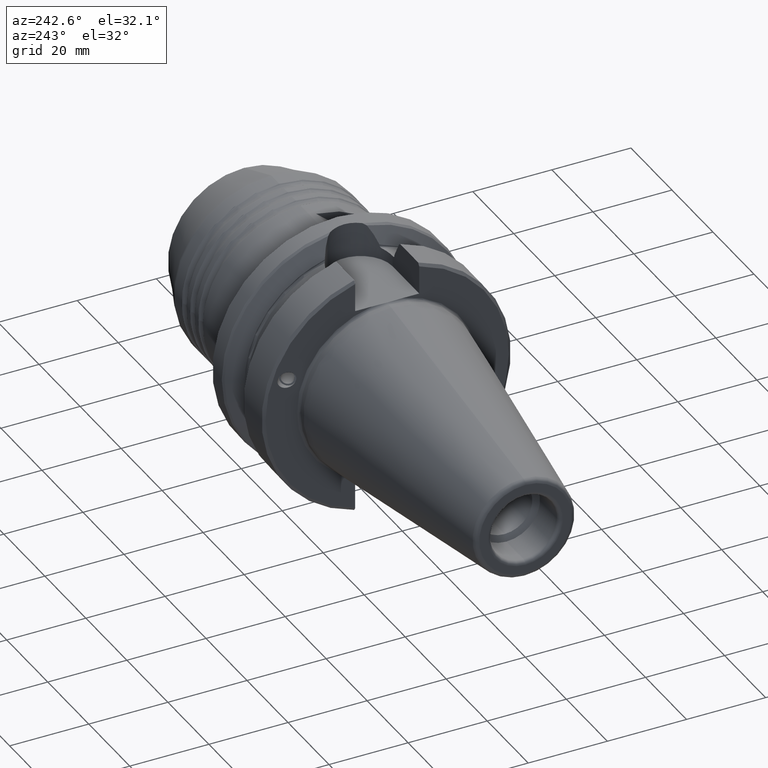
[diagram: clean part render]
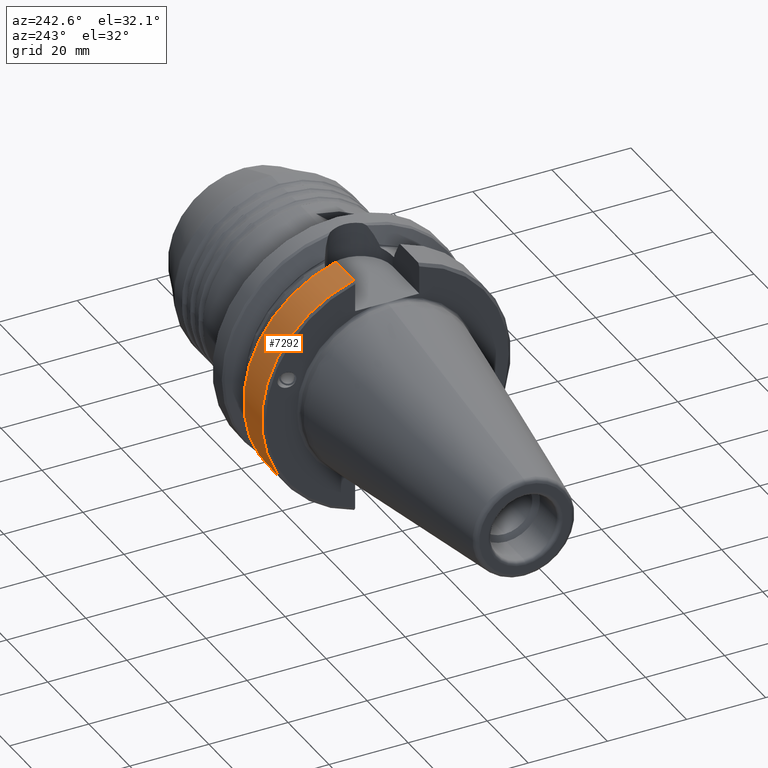
[diagram: same view with one face highlighted and labeled with its STEP entity id]
A machine part, auxiliary view. The second image highlights one B-rep face of the part: STEP entity #7292.
In plain terms, the highlighted cylindrical surface (partial cylindrical patch) has radius 31.4885 mm, axis along (-1, 0, 0).
Its self-contained STEP definition (entity closure, byte-faithful):
#264 = CYLINDRICAL_SURFACE ( 'NONE', #6782, 31.48849999999999500 ) ;
#520 = EDGE_CURVE ( 'NONE', #7475, #7281, #5904, .T. ) ;
#584 = CARTESIAN_POINT ( 'NONE',  ( 76.66646710188548800, 0.0000000000000000000, 0.0000000000000000000 ) ) ;
#807 = EDGE_LOOP ( 'NONE', ( #4420, #1133, #3677, #4461 ) ) ;
#1118 = EDGE_CURVE ( 'NONE', #6583, #1887, #1666, .T. ) ;
#1133 = ORIENTED_EDGE ( 'NONE', *, *, #1118, .T. ) ;
#1203 = VECTOR ( 'NONE', #1493, 1000.000000000000000 ) ;
#1493 = DIRECTION ( 'NONE',  ( -1.000000000000000000, 0.0000000000000000000, -0.0000000000000000000 ) ) ;
#1504 = VECTOR ( 'NONE', #2021, 1000.000000000000000 ) ;
#1569 = AXIS2_PLACEMENT_3D ( 'NONE', #584, #4627, #2303 ) ;
#1666 = CIRCLE ( 'NONE', #1569, 31.48849999999999500 ) ;
#1688 = FACE_OUTER_BOUND ( 'NONE', #807, .T. ) ;
#1887 = VERTEX_POINT ( 'NONE', #7558 ) ;
#2021 = DIRECTION ( 'NONE',  ( 1.000000000000000000, 0.0000000000000000000, 0.0000000000000000000 ) ) ;
#2032 = LINE ( 'NONE', #7136, #1203 ) ;
#2160 = EDGE_CURVE ( 'NONE', #7281, #6583, #5417, .T. ) ;
#2303 = DIRECTION ( 'NONE',  ( 0.0000000000000000000, 0.0000000000000000000, -1.000000000000000000 ) ) ;
#2943 = CARTESIAN_POINT ( 'NONE',  ( 67.89999999999879800, 8.095000000000000600, 30.43019236301000100 ) ) ;
#3385 = CARTESIAN_POINT ( 'NONE',  ( 67.89999999999879800, 0.0000000000000000000, 0.0000000000000000000 ) ) ;
#3677 = ORIENTED_EDGE ( 'NONE', *, *, #3946, .T. ) ;
#3695 = DIRECTION ( 'NONE',  ( 0.0000000000000000000, 0.0000000000000000000, 1.000000000000000000 ) ) ;
#3946 = EDGE_CURVE ( 'NONE', #1887, #7475, #2032, .T. ) ;
#4258 = DIRECTION ( 'NONE',  ( -1.000000000000000000, 0.0000000000000000000, 0.0000000000000000000 ) ) ;
#4420 = ORIENTED_EDGE ( 'NONE', *, *, #2160, .T. ) ;
#4461 = ORIENTED_EDGE ( 'NONE', *, *, #520, .T. ) ;
#4512 = DIRECTION ( 'NONE',  ( 1.000000000000000000, -0.0000000000000000000, -0.0000000000000000000 ) ) ;
#4627 = DIRECTION ( 'NONE',  ( -1.000000000000000000, 0.0000000000000000000, 0.0000000000000000000 ) ) ;
#5042 = DIRECTION ( 'NONE',  ( 0.0000000000000000000, 0.0000000000000000000, 1.000000000000000000 ) ) ;
#5417 = LINE ( 'NONE', #5523, #1504 ) ;
#5523 = CARTESIAN_POINT ( 'NONE',  ( 0.0000000000000000000, 8.095000000000000600, 30.43019236301000100 ) ) ;
#5586 = AXIS2_PLACEMENT_3D ( 'NONE', #3385, #4512, #5042 ) ;
#5756 = CARTESIAN_POINT ( 'NONE',  ( 76.66646710188548800, 8.095000000000000600, 30.43019236301000100 ) ) ;
#5904 = CIRCLE ( 'NONE', #5586, 31.48849999999999500 ) ;
#6583 = VERTEX_POINT ( 'NONE', #5756 ) ;
#6782 = AXIS2_PLACEMENT_3D ( 'NONE', #7203, #4258, #3695 ) ;
#7136 = CARTESIAN_POINT ( 'NONE',  ( 80.30500000000002100, 8.095000000000000600, -30.43019236301000100 ) ) ;
#7203 = CARTESIAN_POINT ( 'NONE',  ( 93.65000000000000600, 0.0000000000000000000, 0.0000000000000000000 ) ) ;
#7281 = VERTEX_POINT ( 'NONE', #2943 ) ;
#7292 = ADVANCED_FACE ( 'NONE', ( #1688 ), #264, .T. ) ;
#7427 = CARTESIAN_POINT ( 'NONE',  ( 67.89999999999879800, 8.095000000000000600, -30.43019236301000100 ) ) ;
#7475 = VERTEX_POINT ( 'NONE', #7427 ) ;
#7558 = CARTESIAN_POINT ( 'NONE',  ( 76.66646710188548800, 8.095000000000000600, -30.43019236301000100 ) ) ;